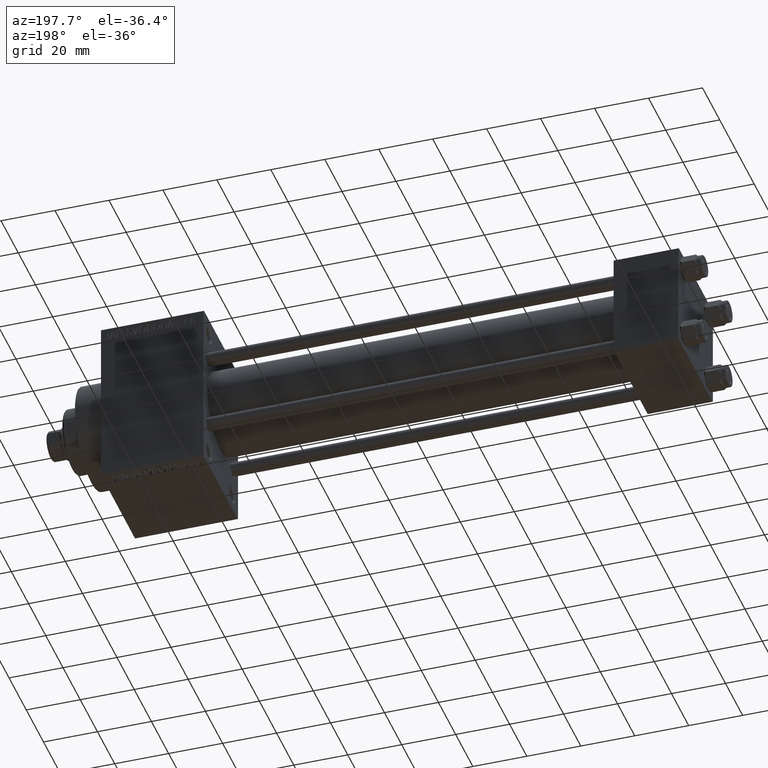
[diagram: clean part render]
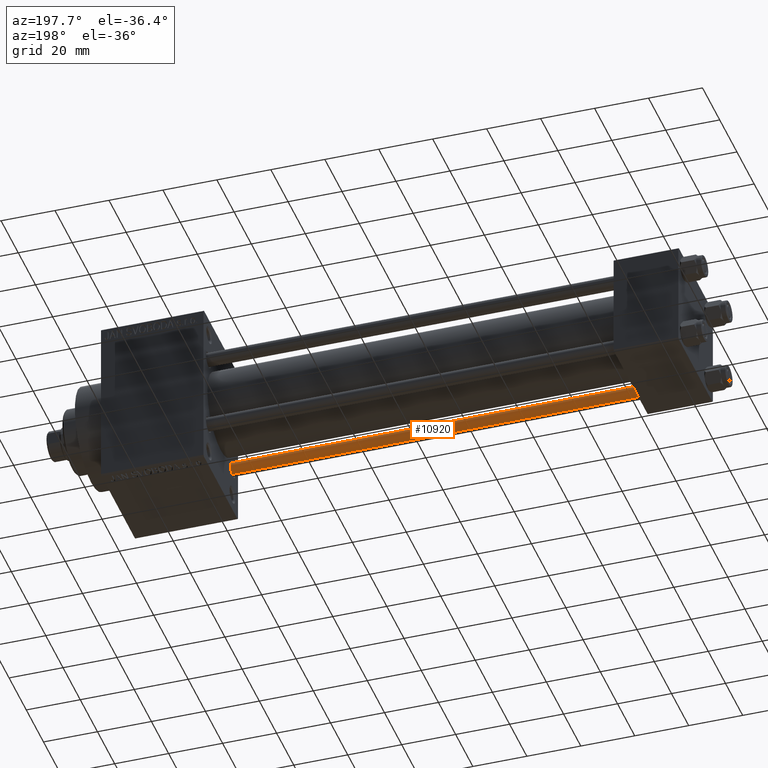
[diagram: same view with one face highlighted and labeled with its STEP entity id]
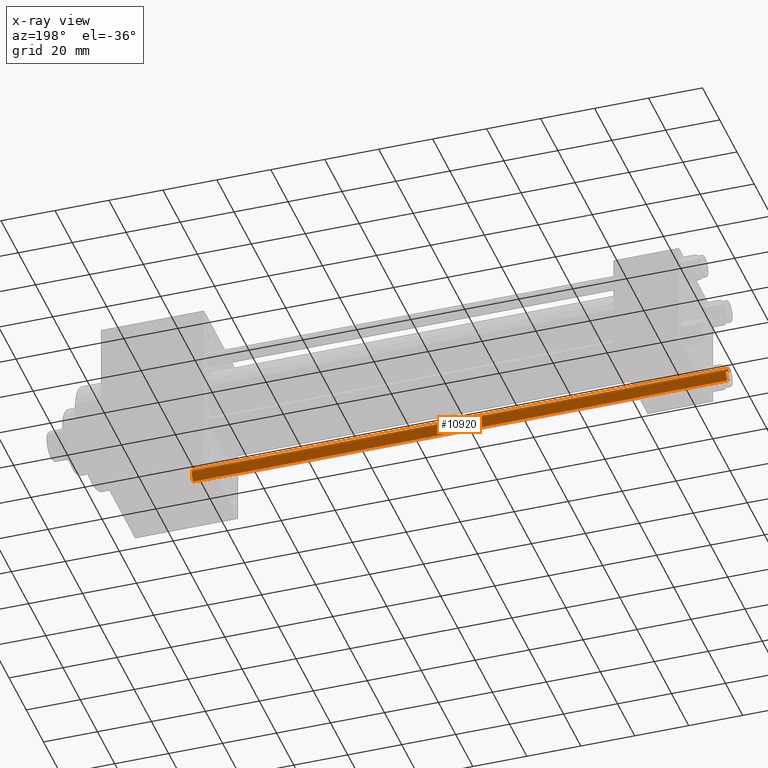
[diagram: x-ray of the same camera — body ghosted, the highlighted face saturated]
A machine part, auxiliary view. The second image highlights one B-rep face of the part: STEP entity #10920.
The next image is the same camera in x-ray: the body ghosted, the highlighted face saturated — about 3% of this face is hidden behind the body in this view.
In plain terms, the highlighted cylindrical surface (edge-blend (fillet) strip) has radius 2.5 mm, axis along (-1, 0, 0).
Its self-contained STEP definition (entity closure, byte-faithful):
#745 = CARTESIAN_POINT ( 'NONE',  ( 0.000000000000000000, 0.000000000000000000, 199.0000000000000000 ) ) ;
#1609 = LINE ( 'NONE', #30813, #28098 ) ;
#2543 = LINE ( 'NONE', #21186, #12356 ) ;
#3856 = DIRECTION ( 'NONE',  ( -0.000000000000000000, -0.000000000000000000, -1.000000000000000000 ) ) ;
#5767 = AXIS2_PLACEMENT_3D ( 'NONE', #28205, #35627, #16937 ) ;
#8904 = CIRCLE ( 'NONE', #5767, 2.500000000000000000 ) ;
#10920 = ADVANCED_FACE ( 'NONE', ( #15546 ), #11269, .T. ) ;
#10989 = CARTESIAN_POINT ( 'NONE',  ( 2.500000000000000000, 3.061616997868383141E-16, 198.5000000000000284 ) ) ;
#11269 = CYLINDRICAL_SURFACE ( 'NONE', #18488, 2.500000000000000000 ) ;
#12356 = VECTOR ( 'NONE', #35800, 1000.000000000000000 ) ;
#12556 = CARTESIAN_POINT ( 'NONE',  ( -2.500000000000000000, 0.000000000000000000, 198.5000000000000284 ) ) ;
#12977 = VERTEX_POINT ( 'NONE', #38989 ) ;
#13903 = VERTEX_POINT ( 'NONE', #10989 ) ;
#14380 = VERTEX_POINT ( 'NONE', #12556 ) ;
#15546 = FACE_OUTER_BOUND ( 'NONE', #38110, .T. ) ;
#16184 = CIRCLE ( 'NONE', #26136, 2.500000000000000000 ) ;
#16937 = DIRECTION ( 'NONE',  ( 1.000000000000000000, 0.000000000000000000, 0.000000000000000000 ) ) ;
#18488 = AXIS2_PLACEMENT_3D ( 'NONE', #745, #3856, #33767 ) ;
#18809 = CARTESIAN_POINT ( 'NONE',  ( 0.000000000000000000, 0.000000000000000000, 198.5000000000000284 ) ) ;
#21186 = CARTESIAN_POINT ( 'NONE',  ( 2.500000000000000000, 3.061616997868383141E-16, 199.0000000000000000 ) ) ;
#21943 = EDGE_CURVE ( 'NONE', #35693, #12977, #8904, .T. ) ;
#22627 = ORIENTED_EDGE ( 'NONE', *, *, #37681, .F. ) ;
#26136 = AXIS2_PLACEMENT_3D ( 'NONE', #18809, #30549, #41531 ) ;
#27191 = EDGE_CURVE ( 'NONE', #14380, #35693, #1609, .T. ) ;
#28098 = VECTOR ( 'NONE', #41556, 1000.000000000000000 ) ;
#28205 = CARTESIAN_POINT ( 'NONE',  ( 0.000000000000000000, 0.000000000000000000, 0.5000000000000004441 ) ) ;
#30549 = DIRECTION ( 'NONE',  ( 0.000000000000000000, 0.000000000000000000, -1.000000000000000000 ) ) ;
#30813 = CARTESIAN_POINT ( 'NONE',  ( -2.500000000000000000, 0.000000000000000000, 199.0000000000000000 ) ) ;
#32792 = ORIENTED_EDGE ( 'NONE', *, *, #27191, .T. ) ;
#33725 = CARTESIAN_POINT ( 'NONE',  ( -2.500000000000000000, 0.000000000000000000, 0.5000000000000004441 ) ) ;
#33767 = DIRECTION ( 'NONE',  ( -1.000000000000000000, 0.000000000000000000, 0.000000000000000000 ) ) ;
#35448 = ORIENTED_EDGE ( 'NONE', *, *, #38852, .T. ) ;
#35627 = DIRECTION ( 'NONE',  ( -0.000000000000000000, -0.000000000000000000, 1.000000000000000000 ) ) ;
#35693 = VERTEX_POINT ( 'NONE', #33725 ) ;
#35800 = DIRECTION ( 'NONE',  ( -0.000000000000000000, -0.000000000000000000, -1.000000000000000000 ) ) ;
#37681 = EDGE_CURVE ( 'NONE', #13903, #12977, #2543, .T. ) ;
#38110 = EDGE_LOOP ( 'NONE', ( #22627, #35448, #32792, #40168 ) ) ;
#38852 = EDGE_CURVE ( 'NONE', #13903, #14380, #16184, .T. ) ;
#38989 = CARTESIAN_POINT ( 'NONE',  ( 2.500000000000000000, 3.061616997868383141E-16, 0.5000000000000004441 ) ) ;
#40168 = ORIENTED_EDGE ( 'NONE', *, *, #21943, .T. ) ;
#41531 = DIRECTION ( 'NONE',  ( 1.000000000000000000, 0.000000000000000000, 0.000000000000000000 ) ) ;
#41556 = DIRECTION ( 'NONE',  ( -0.000000000000000000, -0.000000000000000000, -1.000000000000000000 ) ) ;